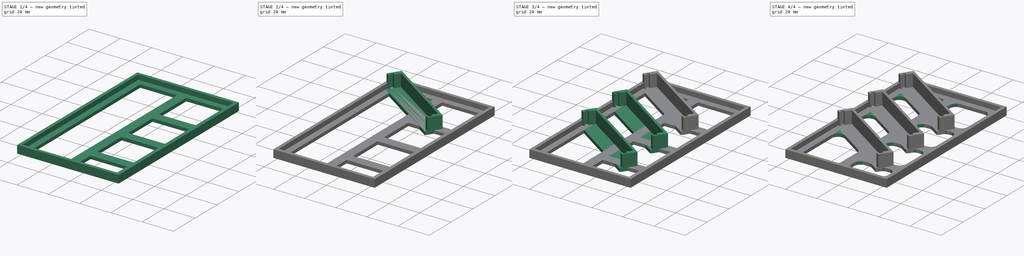
[diagram: build sequence overview — one tinted view per stage of 4, left to right]
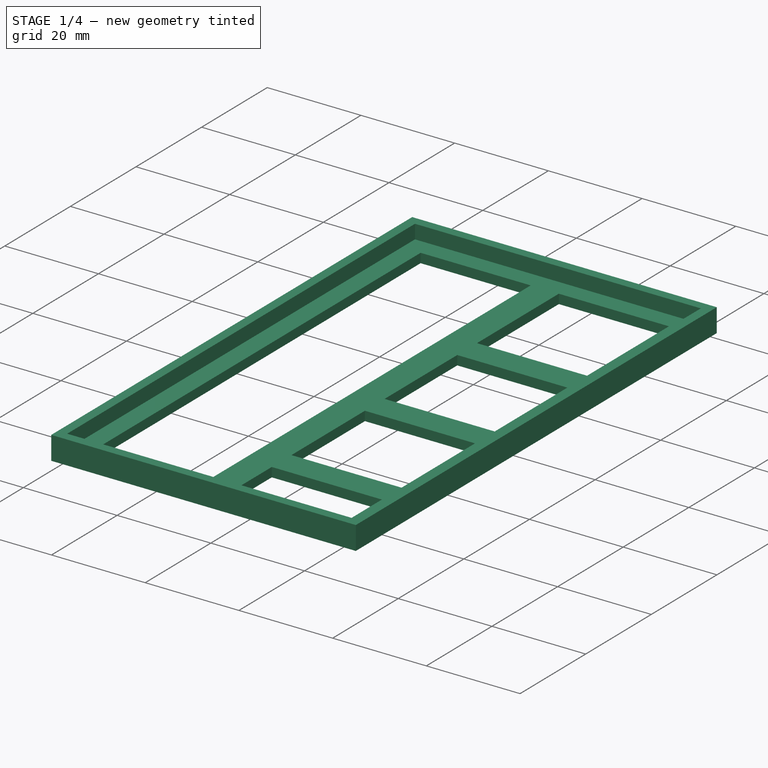
[diagram: stage 1 of 4 — iso view after this stage's code; geometry added in this stage tinted green]
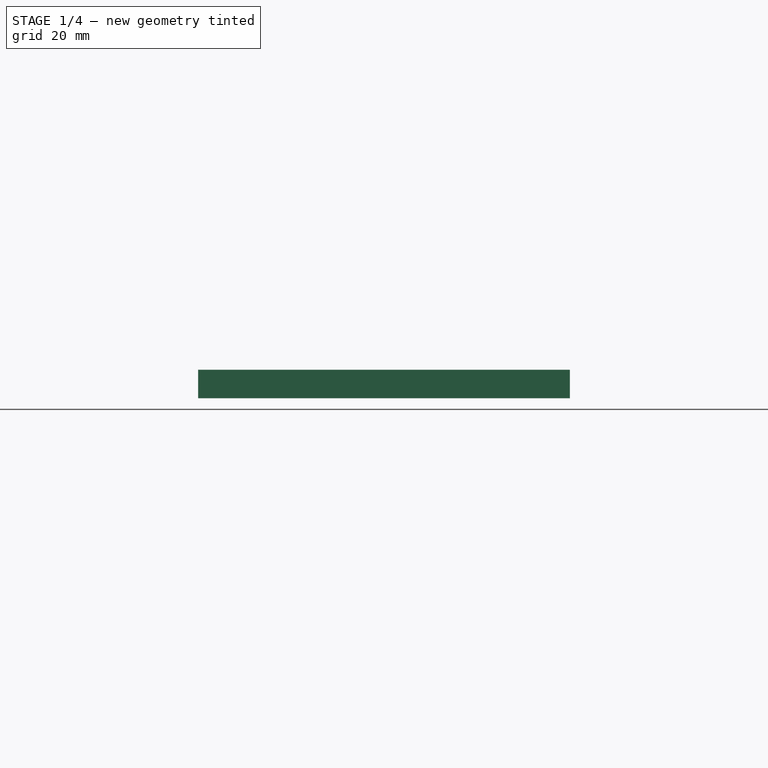
[diagram: stage 1 of 4 — front view after this stage's code; geometry added in this stage tinted green]
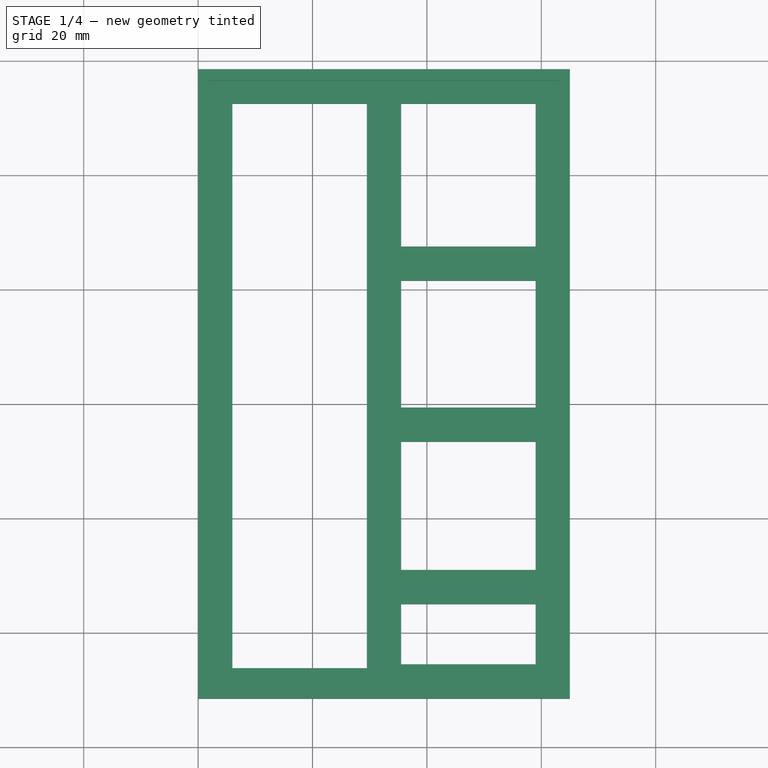
[diagram: stage 1 of 4 — top view after this stage's code; geometry added in this stage tinted green]
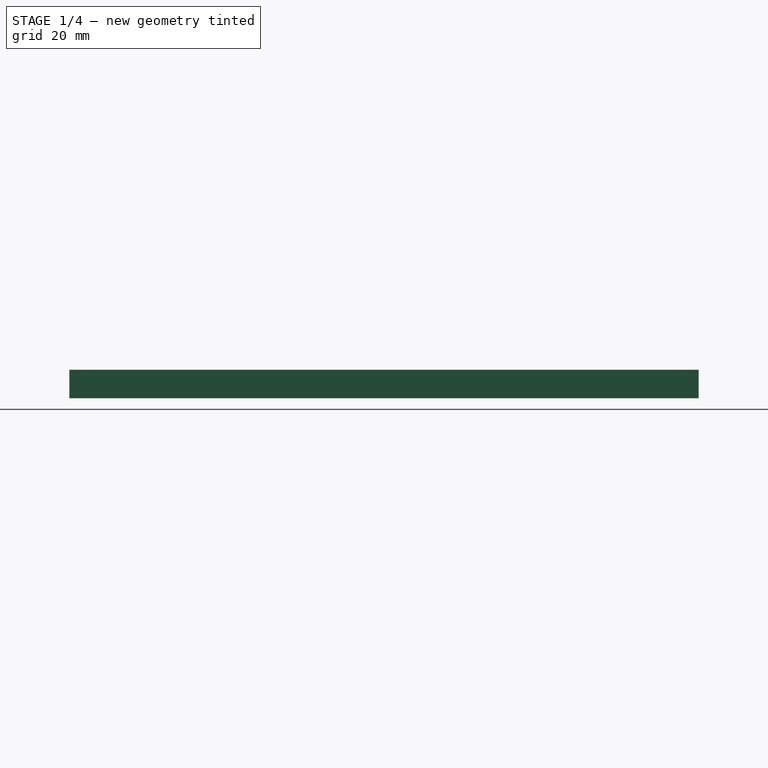
[diagram: stage 1 of 4 — right view after this stage's code; geometry added in this stage tinted green]
FCSTD DOCUMENT  (FreeCAD 0.15R4671 (Git))
Label: SupportV1
License: All rights reserved
LicenseURL: http://en.wikipedia.org/wiki/All_rights_reserved
objects: Sketcher::SketchObject×4, PartDesign::Pad×4, PartDesign::Fillet×4, Part::MultiFuse×3, Part::FeaturePython×2
note: 21 computed .brp shape members not serialized (recipe doc carries the construction recipe); baked Part::Feature solids carry a one-line shape summary decoded from their .brp

FEATURE [Sketcher::SketchObject] Sketch002  label="Paredes"
  sketch-geometry (8):
    g0: LineSegment StartX=0 StartY=-1.5 StartZ=0 EndX=65 EndY=-1.5 EndZ=0
    g1: LineSegment StartX=65 StartY=-1.5 StartZ=0 EndX=65 EndY=-111.5 EndZ=0
    g2: LineSegment StartX=65 StartY=-111.5 StartZ=0 EndX=0 EndY=-111.5 EndZ=0
    g3: LineSegment StartX=0 StartY=-111.5 StartZ=0 EndX=0 EndY=-1.5 EndZ=0
    g4: LineSegment StartX=2 StartY=-3.5 StartZ=0 EndX=63 EndY=-3.5 EndZ=0
    g5: LineSegment StartX=63 StartY=-3.5 StartZ=0 EndX=63 EndY=-109.5 EndZ=0
    g6: LineSegment StartX=63 StartY=-109.5 StartZ=0 EndX=2 EndY=-109.5 EndZ=0
    g7: LineSegment StartX=2 StartY=-109.5 StartZ=0 EndX=2 EndY=-3.5 EndZ=0
  constraints (24):
    c: Coincident(g0,g1)
    c: Coincident(g1,g2)
    c: Coincident(g2,g3)
    c: Coincident(g3,g0)
    c: Horizontal(g0)
    c: Horizontal(g2)
    c: Vertical(g1)
    c: Vertical(g3)
    c: PointOnObject(g0,g-2)
    c: DistanceY(g-1,g0) = -1.5
    c: DistanceY(g3) = 110
    c: Distance(g0) = 65
    c: Coincident(g4,g5)
    c: Coincident(g5,g6)
    c: Coincident(g6,g7)
    c: Coincident(g7,g4)
    c: Horizontal(g4)
    c: Horizontal(g6)
    c: Vertical(g5)
    c: Vertical(g7)
    c: DistanceY(g4,g0) = 2
    c: DistanceX(g4,g0) = 2
    c: DistanceY(g5,g1) = -2
    c: DistanceX(g6,g2) = -2
FEATURE [Sketcher::SketchObject] Sketch003  label="Base001"
  sketch-geometry (24):
    g0: LineSegment StartX=0 StartY=-1.5 StartZ=0 EndX=65 EndY=-1.5 EndZ=0
    g1: LineSegment StartX=65 StartY=-1.5 StartZ=0 EndX=65 EndY=-111.5 EndZ=0
    g2: LineSegment StartX=65 StartY=-111.5 StartZ=0 EndX=0 EndY=-111.5 EndZ=0
    g3: LineSegment StartX=0 StartY=-111.5 StartZ=0 EndX=0 EndY=-1.5 EndZ=0
    g4: LineSegment StartX=6 StartY=-7.5 StartZ=0 EndX=29.5 EndY=-7.5 EndZ=0
    g5: LineSegment StartX=29.5 StartY=-7.5 StartZ=0 EndX=29.5 EndY=-106.176 EndZ=0
    g6: LineSegment StartX=29.5 StartY=-106.176 StartZ=0 EndX=6 EndY=-106.176 EndZ=0
    g7: LineSegment StartX=6 StartY=-106.176 StartZ=0 EndX=6 EndY=-7.5 EndZ=0
    g8: LineSegment StartX=35.5 StartY=-7.5 StartZ=0 EndX=59 EndY=-7.5 EndZ=0
    g9: LineSegment StartX=59 StartY=-7.5 StartZ=0 EndX=59 EndY=-32.4545 EndZ=0
    g10: LineSegment StartX=59 StartY=-32.4545 StartZ=0 EndX=35.5 EndY=-32.4545 EndZ=0
    g11: LineSegment StartX=35.5 StartY=-32.4545 StartZ=0 EndX=35.5 EndY=-7.5 EndZ=0
    g12: LineSegment StartX=35.5 StartY=-38.4545 StartZ=0 EndX=59 EndY=-38.4545 EndZ=0
    g13: LineSegment StartX=59 StartY=-38.4545 StartZ=0 EndX=59 EndY=-60.604 EndZ=0
    g14: LineSegment StartX=59 StartY=-60.604 StartZ=0 EndX=35.5 EndY=-60.604 EndZ=0
    g15: LineSegment StartX=35.5 StartY=-60.604 StartZ=0 EndX=35.5 EndY=-38.4545 EndZ=0
    g16: LineSegment StartX=35.5 StartY=-66.604 StartZ=0 EndX=59 EndY=-66.604 EndZ=0
    g17: LineSegment StartX=59 StartY=-66.604 StartZ=0 EndX=59 EndY=-88.989 EndZ=0
    g18: LineSegment StartX=59 StartY=-88.989 StartZ=0 EndX=35.5 EndY=-88.989 EndZ=0
    g19: LineSegment StartX=35.5 StartY=-88.989 StartZ=0 EndX=35.5 EndY=-66.604 EndZ=0
    g20: LineSegment StartX=35.5 StartY=-94.989 StartZ=0 EndX=59 EndY=-94.989 EndZ=0
    g21: LineSegment StartX=59 StartY=-94.989 StartZ=0 EndX=59 EndY=-105.5 EndZ=0
    g22: LineSegment StartX=59 StartY=-105.5 StartZ=0 EndX=35.5 EndY=-105.5 EndZ=0
    g23: LineSegment StartX=35.5 StartY=-105.5 StartZ=0 EndX=35.5 EndY=-94.989 EndZ=0
  constraints (68):
    c: Coincident(g0,g1)
    c: Coincident(g1,g2)
    c: Coincident(g2,g3)
    c: Coincident(g3,g0)
    c: Horizontal(g0)
    c: Horizontal(g2)
    c: Vertical(g1)
    c: Vertical(g3)
    c: PointOnObject(g0,g-2)
    c: Distance(g1) = 110
    c: Distance(g0) = 65
    c: DistanceY(g-1,g0) = -1.5
    c: Coincident(g4,g5)
    c: Coincident(g5,g6)
    c: Coincident(g6,g7)
    c: Coincident(g7,g4)
    c: Horizontal(g4)
    c: Horizontal(g6)
    c: Vertical(g5)
    c: Vertical(g7)
    c: Coincident(g8,g9)
    c: Coincident(g9,g10)
    c: Coincident(g10,g11)
    c: Coincident(g11,g8)
    c: Horizontal(g8)
    c: Horizontal(g10)
    c: Vertical(g9)
    c: Vertical(g11)
    c: Equal(g4,g8)
    c: DistanceX(g4,g8) = 6
    c: DistanceX(g4,g0) = -6
    c: DistanceX(g0,g8) = -6
    c: DistanceY(g4,g0) = 6
    c: DistanceY(g8,g0) = 6
    c: Coincident(g12,g13)
    c: Coincident(g13,g14)
    c: Coincident(g14,g15)
    c: Coincident(g15,g12)
    c: Horizontal(g12)
    c: Horizontal(g14)
    c: Vertical(g13)
    c: Vertical(g15)
    c: DistanceX(g12,g4) = -6
    c: DistanceX(g12,g0) = 6
    c: Coincident(g16,g17)
    c: Coincident(g17,g18)
    c: Coincident(g18,g19)
    c: Coincident(g19,g16)
    c: Horizontal(g16)
    c: Horizontal(g18)
    c: Vertical(g17)
    c: Vertical(g19)
    c: DistanceY(g9,g12) = -6
    c: DistanceY(g16,g13) = 6
    c: DistanceX(g16,g0) = 6
    c: DistanceX(g16,g4) = -6
    c: Coincident(g20,g21)
    c: Coincident(g21,g22)
    c: Coincident(g22,g23)
    c: Coincident(g23,g20)
    c: Horizontal(g20)
    c: Horizontal(g22)
    c: Vertical(g21)
    c: Vertical(g23)
    c: DistanceX(g20,g0) = 6
    c: DistanceX(g20,g4) = -6
    c: DistanceY(g20,g17) = 6
    c: DistanceY(g21,g1) = -6
FEATURE [PartDesign::Pad] Pad002
  Length = 5
  Length2 = 100
  Sketch = -> Sketch002
  Type = 0
FEATURE [PartDesign::Pad] Pad003
  Length = 2
  Length2 = 100
  Sketch = -> Sketch003
  Type = 0
FEATURE [Part::MultiFuse] Fusion001
  Shapes = -> [Pad003,Pad002]
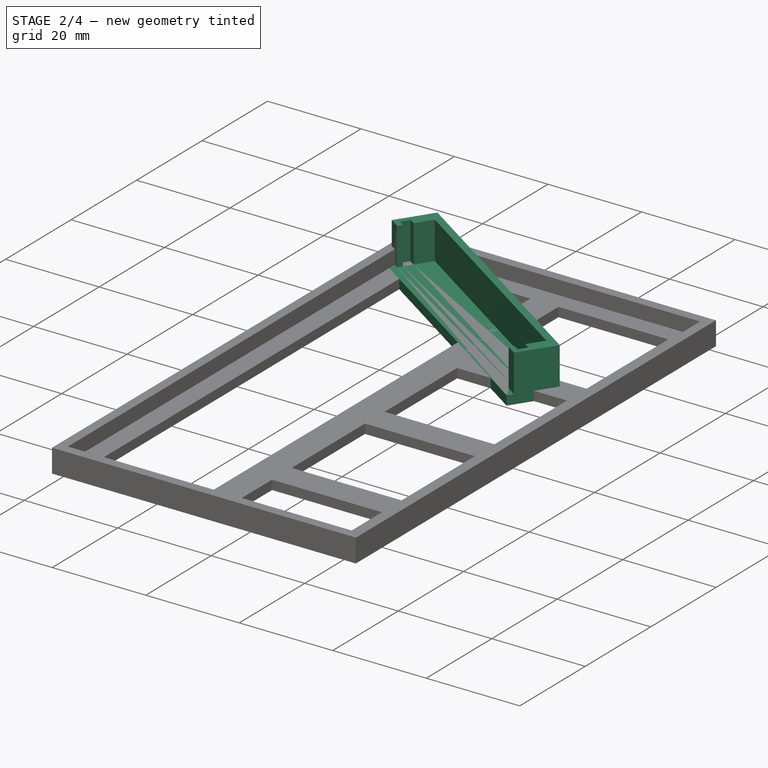
[diagram: stage 2 of 4 — iso view after this stage's code; geometry added in this stage tinted green]
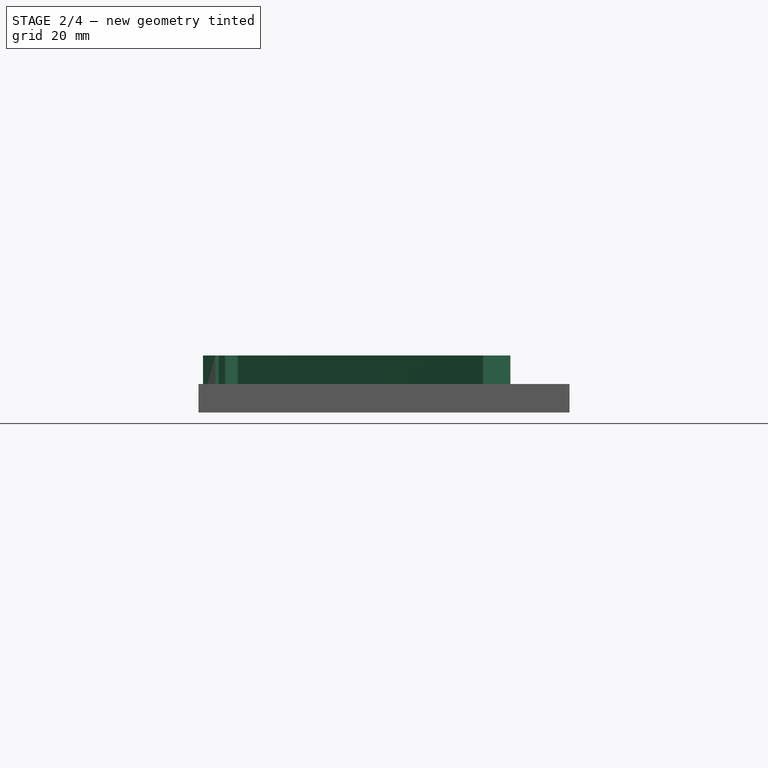
[diagram: stage 2 of 4 — front view after this stage's code; geometry added in this stage tinted green]
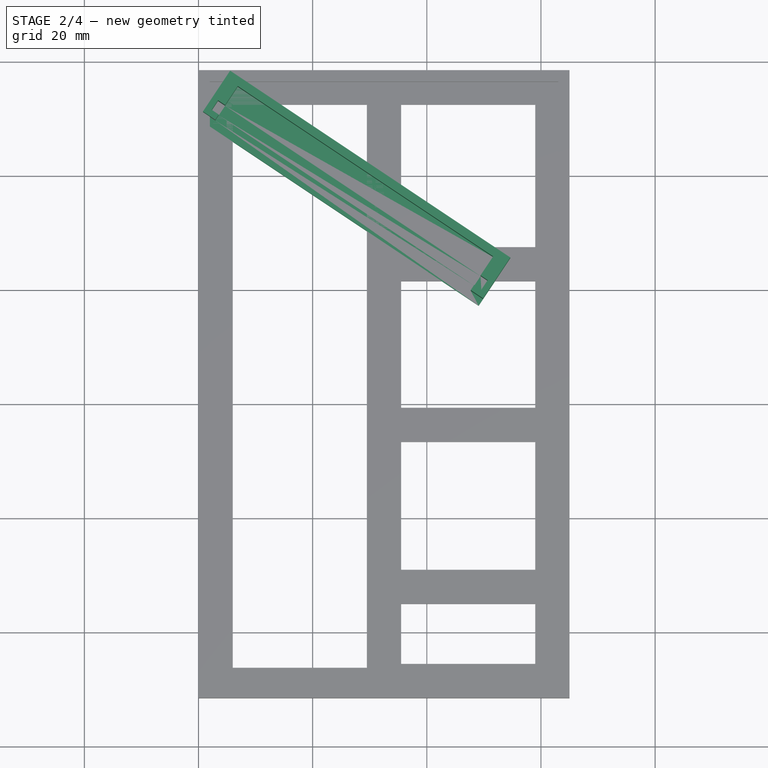
[diagram: stage 2 of 4 — top view after this stage's code; geometry added in this stage tinted green]
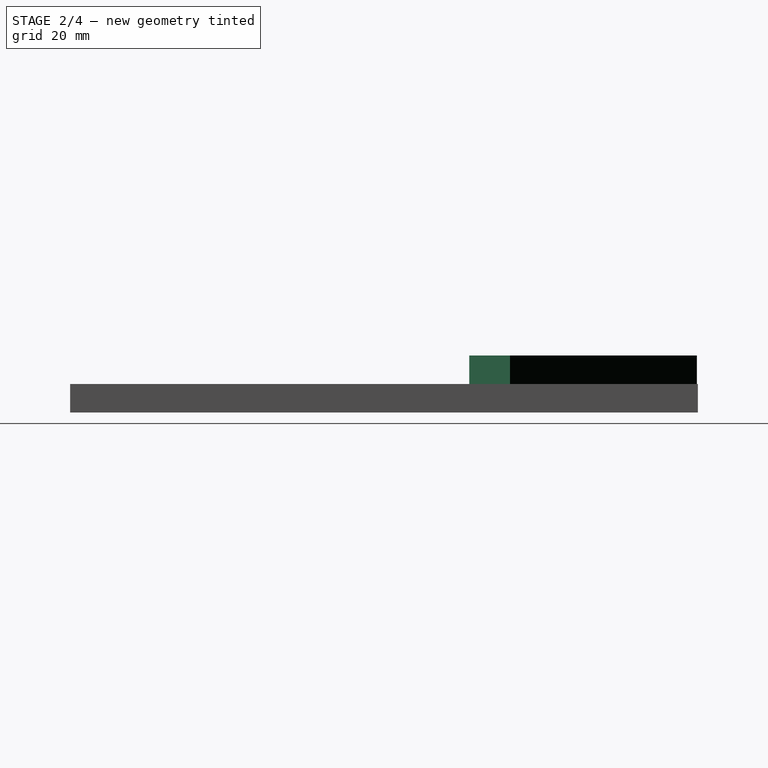
[diagram: stage 2 of 4 — right view after this stage's code; geometry added in this stage tinted green]
FEATURE [Sketcher::SketchObject] Sketch  label="Base"
  sketch-geometry (4):
    g0: LineSegment StartX=0 StartY=0 StartZ=0 EndX=59 EndY=0 EndZ=0
    g1: LineSegment StartX=59 StartY=0 StartZ=0 EndX=59 EndY=-10 EndZ=0
    g2: LineSegment StartX=59 StartY=-10 StartZ=0 EndX=0 EndY=-10 EndZ=0
    g3: LineSegment StartX=0 StartY=-10 StartZ=0 EndX=0 EndY=0 EndZ=0
  constraints (11):
    c: Coincident(g0,g1)
    c: Coincident(g1,g2)
    c: Coincident(g2,g3)
    c: Coincident(g3,g0)
    c: Horizontal(g0)
    c: Horizontal(g2)
    c: Vertical(g1)
    c: Vertical(g3)
    c: Distance(g0) = 59
    c: Distance(g1) = 10
    c: Coincident(g0,g-1)
FEATURE [Sketcher::SketchObject] Sketch001  label="Seguradores"
  sketch-geometry (16):
    g0: LineSegment StartX=0 StartY=0 StartZ=0 EndX=0 EndY=-8.6 EndZ=0
    g1: LineSegment StartX=0 StartY=-8.6 StartZ=0 EndX=2.6 EndY=-8.6 EndZ=0
    g2: LineSegment StartX=2.6 StartY=-8.6 StartZ=0 EndX=2.6 EndY=-7.5 EndZ=0
    g3: LineSegment StartX=2.6 StartY=-7.5 StartZ=0 EndX=1.1 EndY=-7.5 EndZ=0
    g4: LineSegment StartX=1.1 StartY=-7.5 StartZ=0 EndX=1.1 EndY=-5.5 EndZ=0
    g5: LineSegment StartX=1.1 StartY=-5.5 StartZ=0 EndX=2.6 EndY=-5.5 EndZ=0
    g6: LineSegment StartX=59 StartY=0 StartZ=0 EndX=0 EndY=0 EndZ=0
    g7: LineSegment StartX=2.6 StartY=-5.5 StartZ=0 EndX=2.6 EndY=-1.5 EndZ=0
    g8: LineSegment StartX=2.6 StartY=-1.5 StartZ=0 EndX=56.4 EndY=-1.5 EndZ=0
    g9: LineSegment StartX=56.4 StartY=-1.5 StartZ=0 EndX=56.4 EndY=-5.5 EndZ=0
    g10: LineSegment StartX=56.4 StartY=-5.5 StartZ=0 EndX=57.9 EndY=-5.5 EndZ=0
    g11: LineSegment StartX=57.9 StartY=-5.5 StartZ=0 EndX=57.9 EndY=-7.5 EndZ=0
    g12: LineSegment StartX=57.9 StartY=-7.5 StartZ=0 EndX=56.4 EndY=-7.5 EndZ=0
    g13: LineSegment StartX=56.4 StartY=-7.5 StartZ=0 EndX=56.4 EndY=-8.6 EndZ=0
    g14: LineSegment StartX=56.4 StartY=-8.6 StartZ=0 EndX=59 EndY=-8.6 EndZ=0
    g15: LineSegment StartX=59 StartY=-8.6 StartZ=0 EndX=59 EndY=0 EndZ=0
  constraints (53):
    c: Vertical(g0)
    c: Coincident(g0,g1)
    c: Coincident(g1,g2)
    c: Coincident(g2,g3)
    c: Horizontal(g3)
    c: Coincident(g3,g4)
    c: Vertical(g4)
    c: Coincident(g4,g5)
    c: PointOnObject(g6,g-1)
    c: Coincident(g6,g-1)
    c: Horizontal(g1)
    c: Vertical(g2)
    c: Equal(g5,g3)
    c: Horizontal(g5)
    c: Distance(g4) = 2
    c: Distance(g1) = 2.6
    c: Coincident(g0,g-1)
    c: Distance(g0) = 8.6
    c: Coincident(g5,g7)
    c: Vertical(g7)
    c: Coincident(g7,g8)
    c: Horizontal(g8)
    c: Coincident(g8,g9)
    c: Vertical(g9)
    c: Coincident(g9,g10)
    c: Horizontal(g10)
    c: Coincident(g10,g11)
    c: Vertical(g11)
    c: Coincident(g11,g12)
    c: Horizontal(g12)
    c: Coincident(g12,g13)
    c: Vertical(g13)
    c: Coincident(g13,g14)
    c: Horizontal(g14)
    c: Coincident(g14,g15)
    c: Vertical(g15)
    c: Coincident(g6,g15)
    c: Equal(g1,g14)
    c: Equal(g11,g4)
    c: Equal(g13,g2)
    c: Equal(g9,g7)
    c: Distance(g6) = 59
    c: Equal(g14,g1)
    c: Equal(g10,g12)
    c: DistanceX(g4,g10) = 56.8
    c: DistanceY(g7) = 4
    c: DistanceY(g-1,g7) = -1.5
    c: Equal(g9,g7)
    c: Equal(g5,g3)
    c: Equal(g5,g3)
    c: Equal(g3,g10)
    c: Equal(g10,g12)
    c: Equal(g15,g0)
FEATURE [PartDesign::Pad] Pad
  Length = 2
  Length2 = 100
  Sketch = -> Sketch
  Type = 0
FEATURE [PartDesign::Pad] Pad001
  Length = 10
  Length2 = 100
  Sketch = -> Sketch001
  Type = 0
FEATURE [Part::MultiFuse] Fusion  label="Relay001"
  Placement = pos=(5.54844,-1.68046,0) rot=(0,0,-1;0.588176rad)
  Shapes = -> [Pad,Pad001]
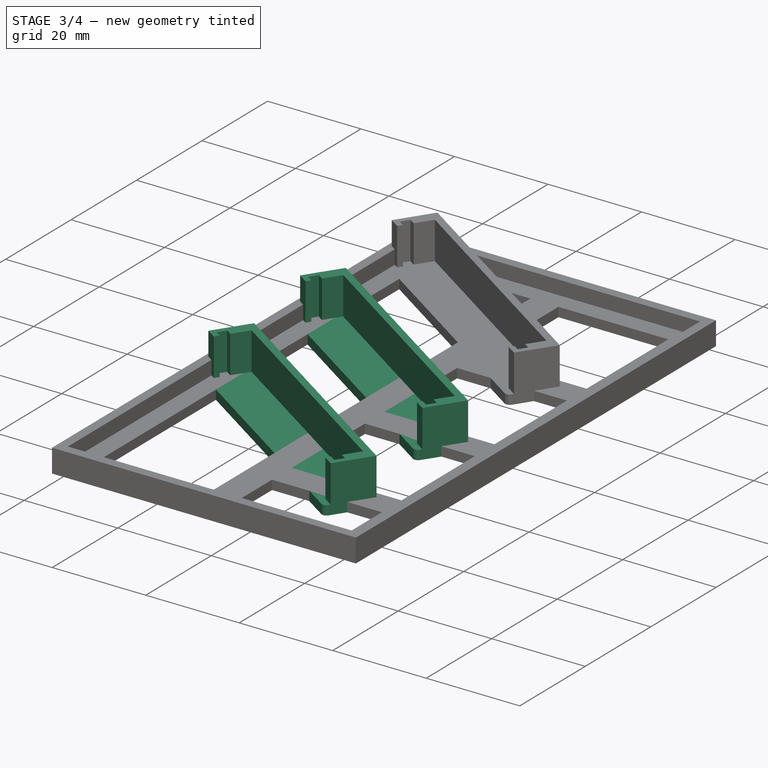
[diagram: stage 3 of 4 — iso view after this stage's code; geometry added in this stage tinted green]
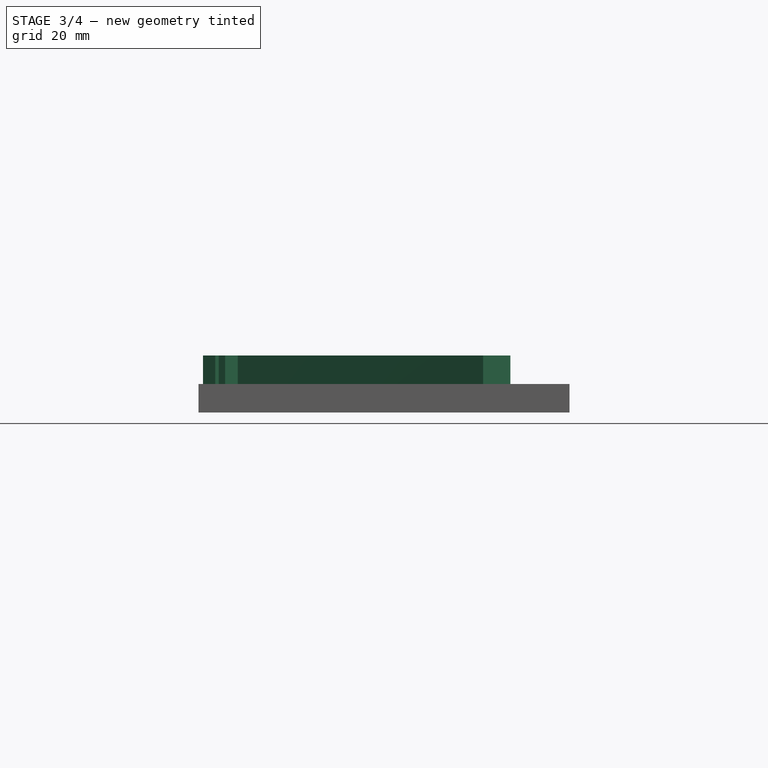
[diagram: stage 3 of 4 — front view after this stage's code; geometry added in this stage tinted green]
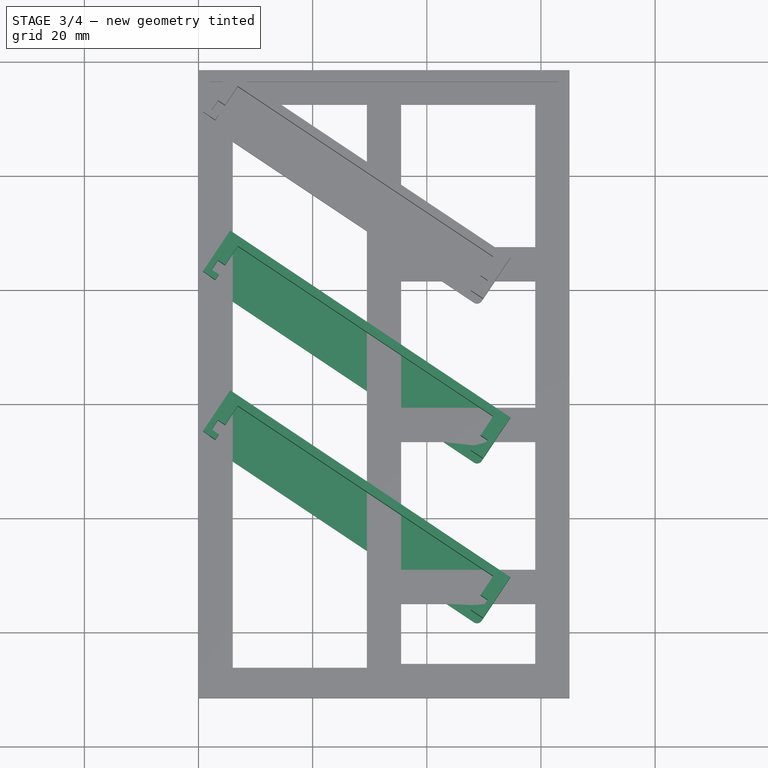
[diagram: stage 3 of 4 — top view after this stage's code; geometry added in this stage tinted green]
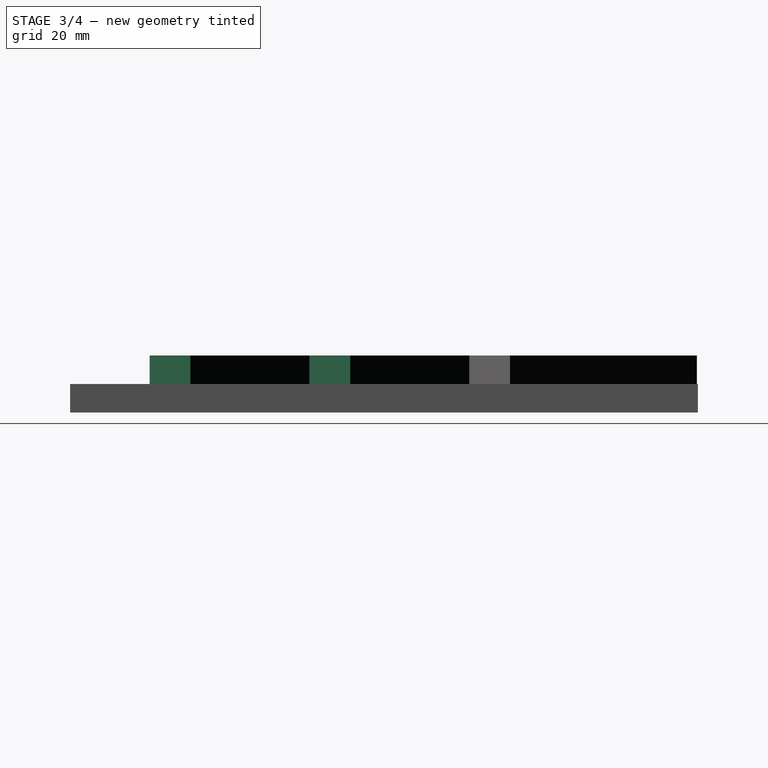
[diagram: stage 3 of 4 — right view after this stage's code; geometry added in this stage tinted green]
FEATURE [Part::FeaturePython] Clone  label="Clone of Relay001"  # Draft clone (typed FeaturePython)
  Objects = -> [Fusion]
  Placement = pos=(5.54844,-29.6805,0) rot=(0,0,-1;0.588176rad)
  Scale = (1,1,1)
FEATURE [Part::FeaturePython] Clone001  label="Clone of Relay002"  # Draft clone (typed FeaturePython)
  Objects = -> [Fusion]
  Placement = pos=(5.54844,-57.6805,0) rot=(0,0,-1;0.588176rad)
  Scale = (1,1,1)
FEATURE [Part::MultiFuse] Fusion002
  Shapes = -> [Clone,Fusion001,Clone001,Fusion]
FEATURE [PartDesign::Fillet] Fillet
  Base = -> Fusion002 [Edge411,Edge2,Edge499]
  Radius = 1
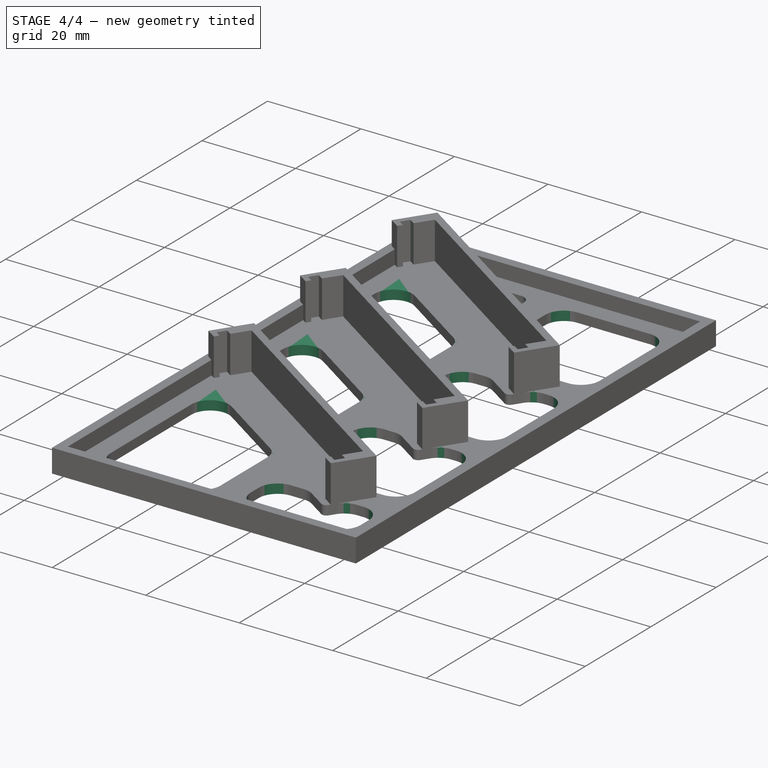
[diagram: stage 4 of 4 — iso view after this stage's code; geometry added in this stage tinted green]
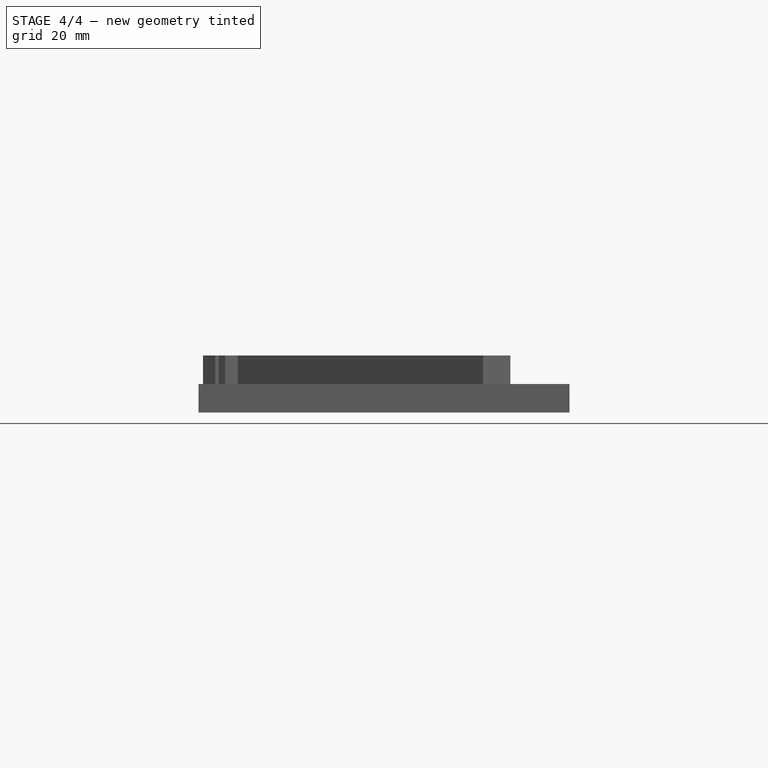
[diagram: stage 4 of 4 — front view after this stage's code; geometry added in this stage tinted green]
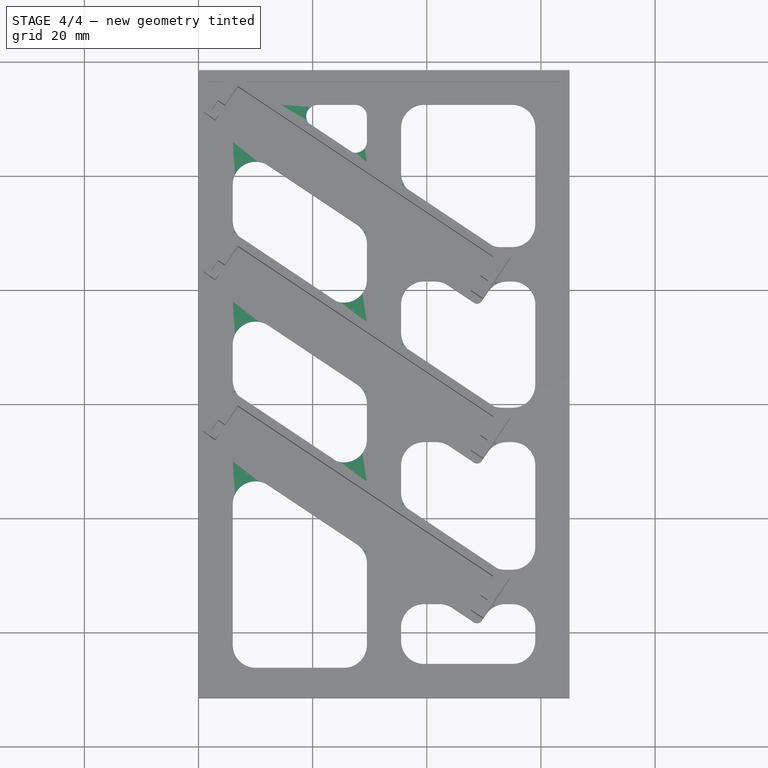
[diagram: stage 4 of 4 — top view after this stage's code; geometry added in this stage tinted green]
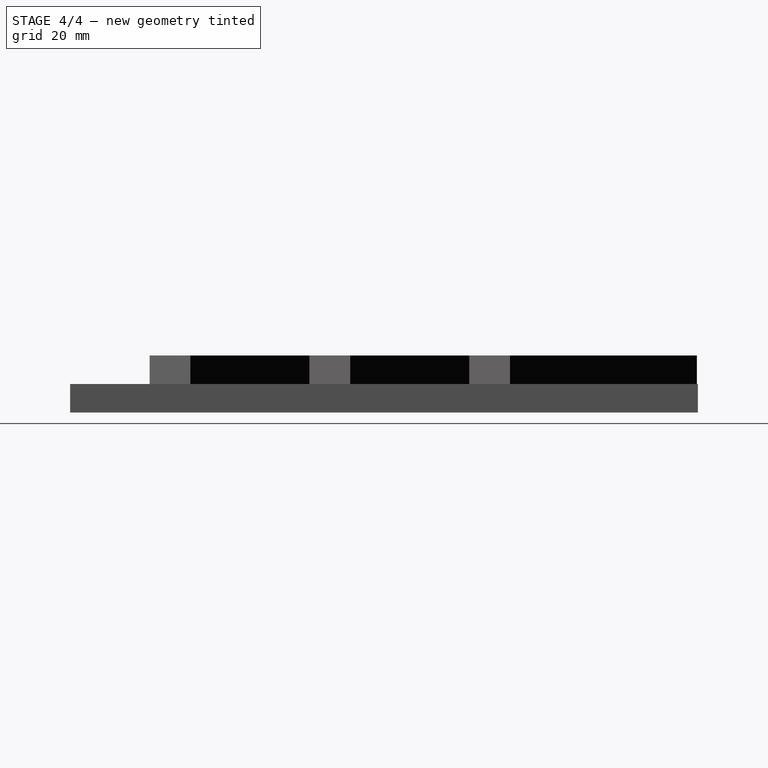
[diagram: stage 4 of 4 — right view after this stage's code; geometry added in this stage tinted green]
FEATURE [PartDesign::Fillet] Fillet001
  Base = -> Fillet [Edge215,Edge214,Edge219,Edge63,Edge24,Edge15,Edge357,Edge356,Edge233,Edge247,Edge248,Edge244,Edge268,Edge230,Edge167,Edge229,Edge216,Edge39,Edge232,Edge246,Edge218,Edge217,Edge154,Edge231,Edge245]
  Radius = 4
FEATURE [PartDesign::Fillet] Fillet002
  Base = -> Fillet001 [Edge213,Edge61,Edge403,Edge220,Edge166,Edge529,Edge380,Edge164,Edge216,Edge382,Edge59,Edge211]
  Radius = 4
FEATURE [PartDesign::Fillet] Fillet003
  Base = -> Fillet002 [Edge365,Edge366,Edge369]
  Radius = 2
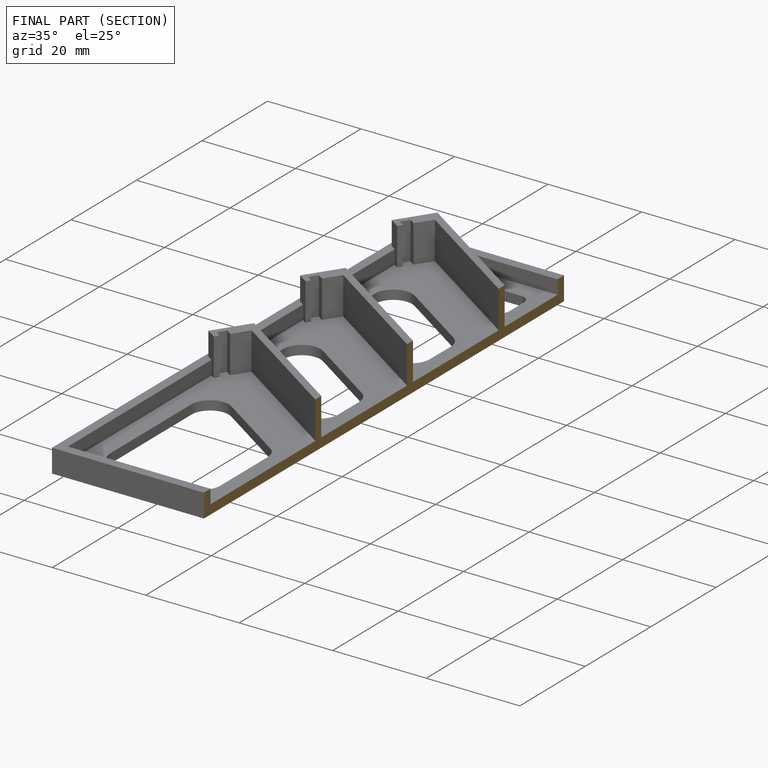
[diagram: finished part — half-section view (interior)]
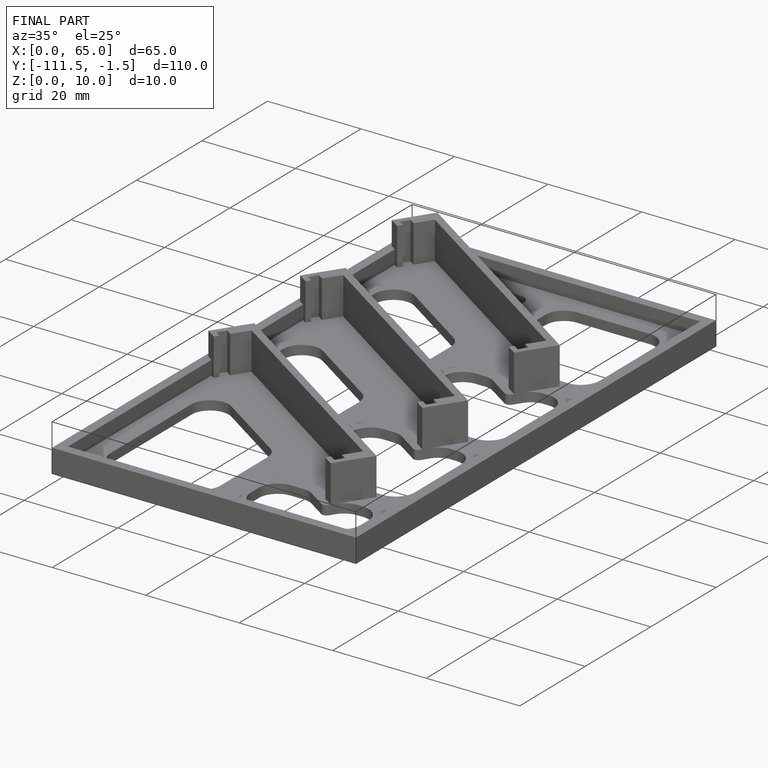
[diagram: finished part — iso view with bounding-box wireframe]
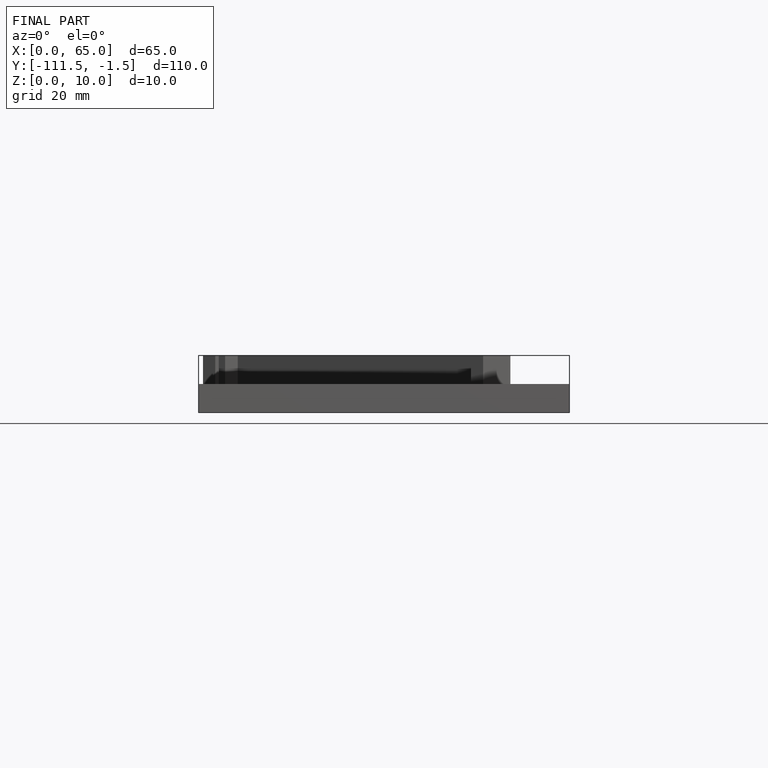
[diagram: finished part — front view with bounding-box wireframe]
